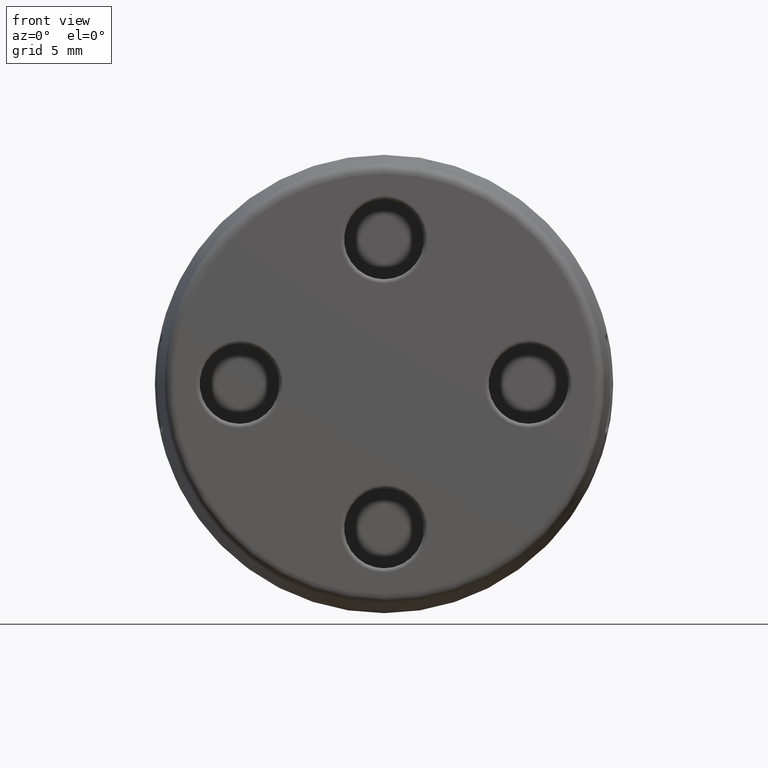
[diagram: clean part render]
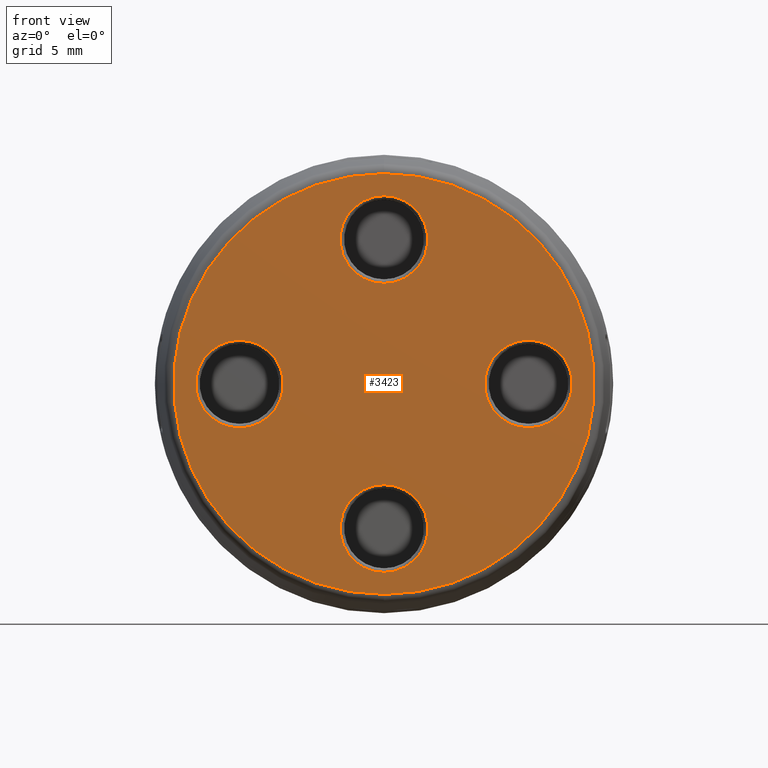
[diagram: same view with one face highlighted and labeled with its STEP entity id]
A machine part, front view. The second image highlights one B-rep face of the part: STEP entity #3423.
In plain terms, the highlighted planar face has unit normal (0, -1, -0).
Its self-contained STEP definition (entity closure, byte-faithful):
#111 = ORIENTED_EDGE ( 'NONE', *, *, #3097, .T. ) ;
#115 = ORIENTED_EDGE ( 'NONE', *, *, #3110, .T. ) ;
#125 = ORIENTED_EDGE ( 'NONE', *, *, #3017, .T. ) ;
#126 = ORIENTED_EDGE ( 'NONE', *, *, #3093, .T. ) ;
#127 = ORIENTED_EDGE ( 'NONE', *, *, #3020, .T. ) ;
#133 = ORIENTED_EDGE ( 'NONE', *, *, #2986, .T. ) ;
#140 = ORIENTED_EDGE ( 'NONE', *, *, #3010, .T. ) ;
#244 = CARTESIAN_POINT ( 'NONE',  ( 0.001343208625347468500, 4.472333961502705800E-016, -5.049999875571765900 ) ) ;
#945 = FACE_BOUND ( 'NONE', #4249, .T. ) ;
#949 = FACE_BOUND ( 'NONE', #4273, .T. ) ;
#963 = PLANE ( 'NONE',  #1524 ) ;
#964 = FACE_BOUND ( 'NONE', #4251, .T. ) ;
#966 = FACE_BOUND ( 'NONE', #4262, .T. ) ;
#967 = DIRECTION ( 'NONE',  ( 0.0000000000000000000, -1.000000000000000000, -0.0000000000000000000 ) ) ;
#976 = FACE_OUTER_BOUND ( 'NONE', #4281, .T. ) ;
#985 = CARTESIAN_POINT ( 'NONE',  ( 0.0000000000000000000, 3.794707603699265500E-016, 0.0000000000000000000 ) ) ;
#991 = DIRECTION ( 'NONE',  ( 0.0000000000000000000, 0.0000000000000000000, -1.000000000000000000 ) ) ;
#1330 = CARTESIAN_POINT ( 'NONE',  ( 0.0000000000000000000, 7.589415207398531000E-016, -10.55844620664770000 ) ) ;
#1340 = CARTESIAN_POINT ( 'NONE',  ( -0.001343208625343541700, 4.472333961502705800E-016, 9.449999875571764500 ) ) ;
#1353 = CARTESIAN_POINT ( 'NONE',  ( -7.249999875571764300, 4.472333961502705800E-016, 2.198656791374656200 ) ) ;
#1361 = CARTESIAN_POINT ( 'NONE',  ( 7.249999875571764300, 4.472333961502705800E-016, 2.201343208625343700 ) ) ;
#1381 = CARTESIAN_POINT ( 'NONE',  ( 1.323641243033164200E-015, 7.589415207398531000E-016, 10.55844620664770000 ) ) ;
#1524 = AXIS2_PLACEMENT_3D ( 'NONE', #985, #967, #991 ) ;
#1659 = CARTESIAN_POINT ( 'NONE',  ( -0.001343208625343811100, 4.472333961502705800E-016, 5.049999875571764100 ) ) ;
#1664 = CARTESIAN_POINT ( 'NONE',  ( -7.249999875571764300, 4.472333961502705800E-016, -2.201343208625345000 ) ) ;
#1674 = CARTESIAN_POINT ( 'NONE',  ( 7.249999875571764300, 4.472333961502705800E-016, -2.198656791374655800 ) ) ;
#1695 = CARTESIAN_POINT ( 'NONE',  ( 0.001343208625347199200, 4.472333961502705800E-016, -9.449999875571764500 ) ) ;
#1740 = AXIS2_PLACEMENT_3D ( 'NONE', #2686, #2665, #2689 ) ;
#1747 = AXIS2_PLACEMENT_3D ( 'NONE', #2664, #2666, #2668 ) ;
#1767 = CIRCLE ( 'NONE', #1747, 2.199999999999999700 ) ;
#1771 = CIRCLE ( 'NONE', #1740, 2.200000000000000600 ) ;
#1856 = AXIS2_PLACEMENT_3D ( 'NONE', #2934, #2932, #2929 ) ;
#1857 = CIRCLE ( 'NONE', #1867, 2.200000000000000600 ) ;
#1859 = CIRCLE ( 'NONE', #1887, 10.55844620664770000 ) ;
#1861 = CIRCLE ( 'NONE', #1879, 10.55844620664770000 ) ;
#1867 = AXIS2_PLACEMENT_3D ( 'NONE', #2022, #2002, #1987 ) ;
#1870 = AXIS2_PLACEMENT_3D ( 'NONE', #2042, #2025, #2044 ) ;
#1871 = CIRCLE ( 'NONE', #1856, 2.199999999999999700 ) ;
#1878 = CIRCLE ( 'NONE', #1870, 2.199999999999999700 ) ;
#1879 = AXIS2_PLACEMENT_3D ( 'NONE', #2918, #2919, #2885 ) ;
#1887 = AXIS2_PLACEMENT_3D ( 'NONE', #2121, #2156, #2133 ) ;
#1905 = CIRCLE ( 'NONE', #1906, 2.200000000000000600 ) ;
#1906 = AXIS2_PLACEMENT_3D ( 'NONE', #2086, #2109, #2111 ) ;
#1987 = DIRECTION ( 'NONE',  ( 0.0000000000000000000, 0.0000000000000000000, -1.000000000000000000 ) ) ;
#2002 = DIRECTION ( 'NONE',  ( 0.0000000000000000000, 1.000000000000000000, 0.0000000000000000000 ) ) ;
#2022 = CARTESIAN_POINT ( 'NONE',  ( -0.001343208625343811100, 3.794707603699265500E-016, 7.249999875571764300 ) ) ;
#2025 = DIRECTION ( 'NONE',  ( 0.0000000000000000000, 1.000000000000000000, 0.0000000000000000000 ) ) ;
#2042 = CARTESIAN_POINT ( 'NONE',  ( 0.001343208625347199200, 3.794707603699265500E-016, -7.249999875571765200 ) ) ;
#2044 = DIRECTION ( 'NONE',  ( 0.0000000000000000000, 0.0000000000000000000, -1.000000000000000000 ) ) ;
#2086 = CARTESIAN_POINT ( 'NONE',  ( -7.249999875571764300, 3.794707603699265500E-016, -0.001343208625344326100 ) ) ;
#2109 = DIRECTION ( 'NONE',  ( 0.0000000000000000000, 1.000000000000000000, 0.0000000000000000000 ) ) ;
#2111 = DIRECTION ( 'NONE',  ( 0.0000000000000000000, 0.0000000000000000000, -1.000000000000000000 ) ) ;
#2121 = CARTESIAN_POINT ( 'NONE',  ( 0.0000000000000000000, 7.589415207398531000E-016, 0.0000000000000000000 ) ) ;
#2133 = DIRECTION ( 'NONE',  ( 0.0000000000000000000, 0.0000000000000000000, -1.000000000000000000 ) ) ;
#2156 = DIRECTION ( 'NONE',  ( -0.0000000000000000000, -1.000000000000000000, -0.0000000000000000000 ) ) ;
#2391 = AXIS2_PLACEMENT_3D ( 'NONE', #2564, #2541, #2565 ) ;
#2413 = CIRCLE ( 'NONE', #2391, 2.200000000000000600 ) ;
#2445 = CIRCLE ( 'NONE', #2450, 2.199999999999999700 ) ;
#2450 = AXIS2_PLACEMENT_3D ( 'NONE', #2648, #2635, #2638 ) ;
#2541 = DIRECTION ( 'NONE',  ( 0.0000000000000000000, 1.000000000000000000, 0.0000000000000000000 ) ) ;
#2564 = CARTESIAN_POINT ( 'NONE',  ( -0.001343208625343811100, 3.794707603699265500E-016, 7.249999875571764300 ) ) ;
#2565 = DIRECTION ( 'NONE',  ( 0.0000000000000000000, 0.0000000000000000000, -1.000000000000000000 ) ) ;
#2635 = DIRECTION ( 'NONE',  ( 0.0000000000000000000, 1.000000000000000000, 0.0000000000000000000 ) ) ;
#2638 = DIRECTION ( 'NONE',  ( 0.0000000000000000000, 0.0000000000000000000, -1.000000000000000000 ) ) ;
#2648 = CARTESIAN_POINT ( 'NONE',  ( 7.249999875571764300, 3.794707603699265500E-016, 0.001343208625344136300 ) ) ;
#2664 = CARTESIAN_POINT ( 'NONE',  ( 0.001343208625347199200, 3.794707603699265500E-016, -7.249999875571765200 ) ) ;
#2665 = DIRECTION ( 'NONE',  ( 0.0000000000000000000, 1.000000000000000000, 0.0000000000000000000 ) ) ;
#2666 = DIRECTION ( 'NONE',  ( 0.0000000000000000000, 1.000000000000000000, 0.0000000000000000000 ) ) ;
#2668 = DIRECTION ( 'NONE',  ( 0.0000000000000000000, 0.0000000000000000000, -1.000000000000000000 ) ) ;
#2686 = CARTESIAN_POINT ( 'NONE',  ( -7.249999875571764300, 3.794707603699265500E-016, -0.001343208625344326100 ) ) ;
#2689 = DIRECTION ( 'NONE',  ( 0.0000000000000000000, 0.0000000000000000000, -1.000000000000000000 ) ) ;
#2885 = DIRECTION ( 'NONE',  ( 0.0000000000000000000, 0.0000000000000000000, -1.000000000000000000 ) ) ;
#2918 = CARTESIAN_POINT ( 'NONE',  ( 0.0000000000000000000, 7.589415207398531000E-016, 0.0000000000000000000 ) ) ;
#2919 = DIRECTION ( 'NONE',  ( -0.0000000000000000000, -1.000000000000000000, -0.0000000000000000000 ) ) ;
#2929 = DIRECTION ( 'NONE',  ( 0.0000000000000000000, 0.0000000000000000000, -1.000000000000000000 ) ) ;
#2932 = DIRECTION ( 'NONE',  ( 0.0000000000000000000, 1.000000000000000000, 0.0000000000000000000 ) ) ;
#2934 = CARTESIAN_POINT ( 'NONE',  ( 7.249999875571764300, 3.794707603699265500E-016, 0.001343208625344136300 ) ) ;
#2986 = EDGE_CURVE ( 'NONE', #3627, #3695, #2413, .T. ) ;
#3010 = EDGE_CURVE ( 'NONE', #3648, #3696, #2445, .T. ) ;
#3017 = EDGE_CURVE ( 'NONE', #3639, #3684, #1771, .T. ) ;
#3020 = EDGE_CURVE ( 'NONE', #3659, #3698, #1767, .T. ) ;
#3090 = EDGE_CURVE ( 'NONE', #3620, #3629, #1861, .T. ) ;
#3093 = EDGE_CURVE ( 'NONE', #3696, #3648, #1871, .T. ) ;
#3097 = EDGE_CURVE ( 'NONE', #3698, #3659, #1878, .T. ) ;
#3104 = EDGE_CURVE ( 'NONE', #3695, #3627, #1857, .T. ) ;
#3110 = EDGE_CURVE ( 'NONE', #3629, #3620, #1859, .T. ) ;
#3121 = EDGE_CURVE ( 'NONE', #3684, #3639, #1905, .T. ) ;
#3423 = ADVANCED_FACE ( 'NONE', ( #966, #945, #964, #949, #976 ), #963, .T. ) ;
#3519 = ORIENTED_EDGE ( 'NONE', *, *, #3104, .T. ) ;
#3535 = ORIENTED_EDGE ( 'NONE', *, *, #3121, .T. ) ;
#3620 = VERTEX_POINT ( 'NONE', #1330 ) ;
#3627 = VERTEX_POINT ( 'NONE', #1340 ) ;
#3629 = VERTEX_POINT ( 'NONE', #1381 ) ;
#3639 = VERTEX_POINT ( 'NONE', #1353 ) ;
#3648 = VERTEX_POINT ( 'NONE', #1361 ) ;
#3659 = VERTEX_POINT ( 'NONE', #244 ) ;
#3684 = VERTEX_POINT ( 'NONE', #1664 ) ;
#3695 = VERTEX_POINT ( 'NONE', #1659 ) ;
#3696 = VERTEX_POINT ( 'NONE', #1674 ) ;
#3698 = VERTEX_POINT ( 'NONE', #1695 ) ;
#3879 = ORIENTED_EDGE ( 'NONE', *, *, #3090, .T. ) ;
#4249 = EDGE_LOOP ( 'NONE', ( #126, #140 ) ) ;
#4251 = EDGE_LOOP ( 'NONE', ( #3519, #133 ) ) ;
#4262 = EDGE_LOOP ( 'NONE', ( #111, #127 ) ) ;
#4273 = EDGE_LOOP ( 'NONE', ( #3535, #125 ) ) ;
#4281 = EDGE_LOOP ( 'NONE', ( #3879, #115 ) ) ;